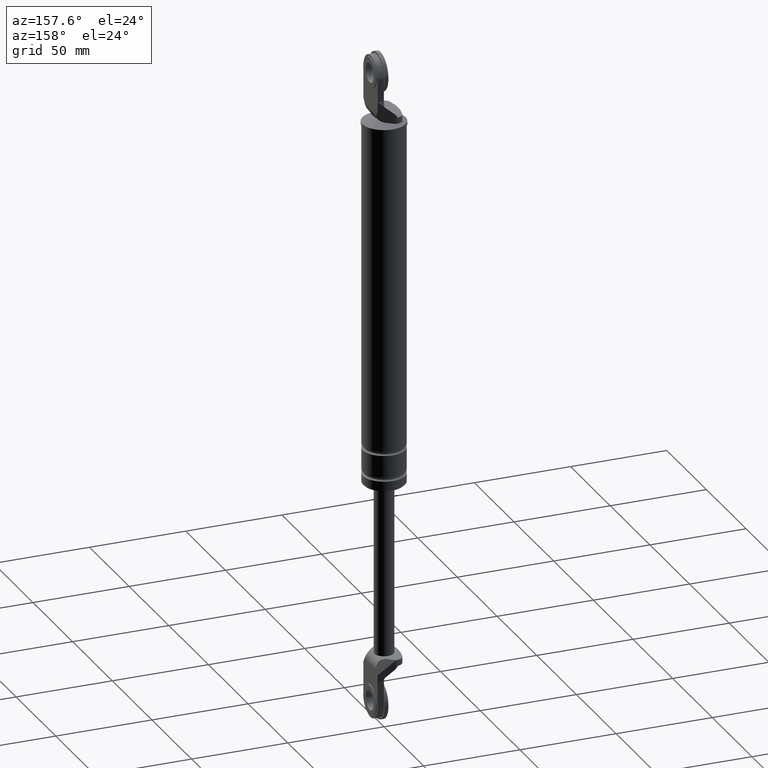
[diagram: clean part render]
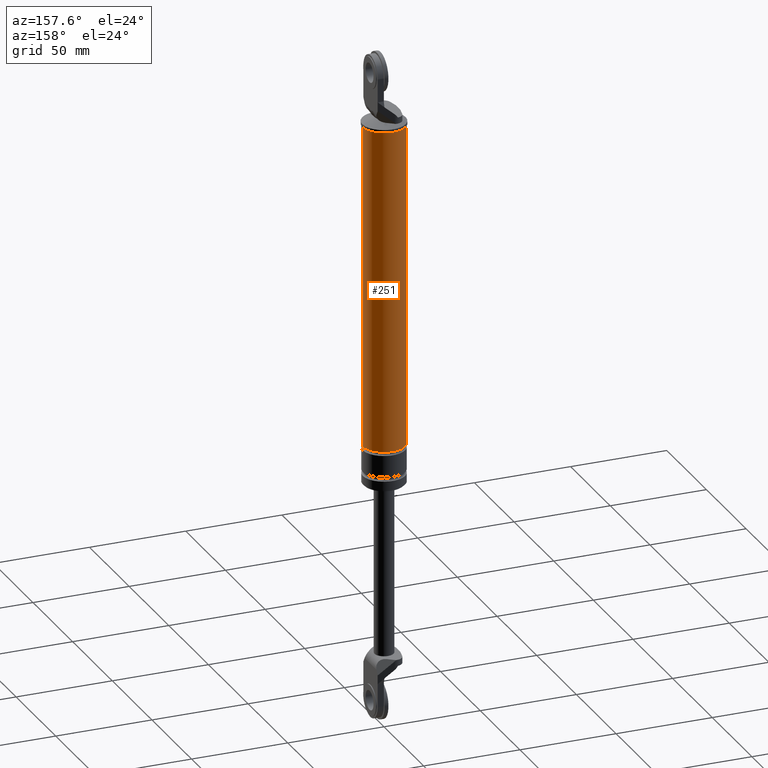
[diagram: same view with one face highlighted and labeled with its STEP entity id]
A machine part, auxiliary view. The second image highlights one B-rep face of the part: STEP entity #251.
In plain terms, the highlighted cylindrical surface (edge-blend (fillet) strip) has radius 11 mm, axis along (0, 0, 1).
Its self-contained STEP definition (entity closure, byte-faithful):
#251=ADVANCED_FACE('',(#765),#764,.T.);
#764=CYLINDRICAL_SURFACE('',#1526,1.10000000000E+001);
#765=FACE_OUTER_BOUND('',#1527,.T.);
#1523=CARTESIAN_POINT('',(0.00000000000E+000,3.58204186421E-014,0.00000000000E+000));
#1524=DIRECTION('',(-0.00000000000E+000,-0.00000000000E+000,1.00000000000E+000));
#1525=DIRECTION('',(1.00000000000E+000,0.00000000000E+000,0.00000000000E+000));
#1526=AXIS2_PLACEMENT_3D('',#1523,#1524,#1525);
#1527=EDGE_LOOP('',(#1982,#1983,#1984,#1985));
#1982=ORIENTED_EDGE('',*,*,#2215,.T.);
#1983=ORIENTED_EDGE('',*,*,#2277,.F.);
#1984=ORIENTED_EDGE('',*,*,#2269,.F.);
#1985=ORIENTED_EDGE('',*,*,#2278,.T.);
#2215=EDGE_CURVE('',#2737,#2736,#2744,.T.);
#2269=EDGE_CURVE('',#3098,#3099,#3100,.T.);
#2277=EDGE_CURVE('',#3099,#2736,#3150,.T.);
#2278=EDGE_CURVE('',#3098,#2737,#3156,.T.);
#2736=VERTEX_POINT('',#3916);
#2737=VERTEX_POINT('',#3917);
#2744=CIRCLE('',#3925,1.10000000000E+001);
#3098=VERTEX_POINT('',#4137);
#3099=VERTEX_POINT('',#4138);
#3100=CIRCLE('',#4142,1.10000000000E+001);
#3150=(BOUNDED_CURVE() B_SPLINE_CURVE(1,(#4171,#4172),.UNSPECIFIED.,.F.,.F.) B_SPLINE_CURVE_WITH_KNOTS((2,2),(5.31914895400E-002,9.46808510809E-001),.UNSPECIFIED.) CURVE() GEOMETRIC_REPRESENTATION_ITEM() RATIONAL_B_SPLINE_CURVE((1.00000000000E+000,1.00000000000E+000)) REPRESENTATION_ITEM('') );
#3156=(BOUNDED_CURVE() B_SPLINE_CURVE(1,(#4173,#4174),.UNSPECIFIED.,.F.,.F.) B_SPLINE_CURVE_WITH_KNOTS((2,2),(5.31914893617E-002,9.46808510638E-001),.UNSPECIFIED.) CURVE() GEOMETRIC_REPRESENTATION_ITEM() RATIONAL_B_SPLINE_CURVE((7.50000000000E-001,7.50000000000E-001)) REPRESENTATION_ITEM('') );
#3916=CARTESIAN_POINT('',(1.10000000000E+001,3.61192557345E-014,8.49999850000E+001));
#3917=CARTESIAN_POINT('',(-1.10000000000E+001,3.58204186421E-014,8.49999850000E+001));
#3922=CARTESIAN_POINT('',(0.00000000000E+000,3.58204186421E-014,8.49999850000E+001));
#3923=DIRECTION('',(-0.00000000000E+000,0.00000000000E+000,-1.00000000000E+000));
#3924=DIRECTION('',(-1.00000000000E+000,-1.22460635382E-016,0.00000000000E+000));
#3925=AXIS2_PLACEMENT_3D('',#3922,#3923,#3924);
#4137=CARTESIAN_POINT('',(-1.10000000000E+001,3.58204186421E-014,-8.30000150000E+001));
#4138=CARTESIAN_POINT('',(1.10000000000E+001,3.61192557345E-014,-8.30000150000E+001));
#4139=CARTESIAN_POINT('',(0.00000000000E+000,3.58204186421E-014,-8.30000150000E+001));
#4140=DIRECTION('',(-0.00000000000E+000,0.00000000000E+000,-1.00000000000E+000));
#4141=DIRECTION('',(-1.00000000000E+000,-1.22460635382E-016,0.00000000000E+000));
#4142=AXIS2_PLACEMENT_3D('',#4139,#4140,#4141);
#4171=CARTESIAN_POINT('',(1.10000000000E+001,3.58204186421E-014,-8.30000149665E+001));
#4172=CARTESIAN_POINT('',(1.10000000000E+001,3.58204186421E-014,8.49999850321E+001));
#4173=CARTESIAN_POINT('',(-1.10000000000E+001,3.55271367880E-014,-8.30000150000E+001));
#4174=CARTESIAN_POINT('',(-1.10000000000E+001,3.55271367880E-014,8.49999850000E+001));